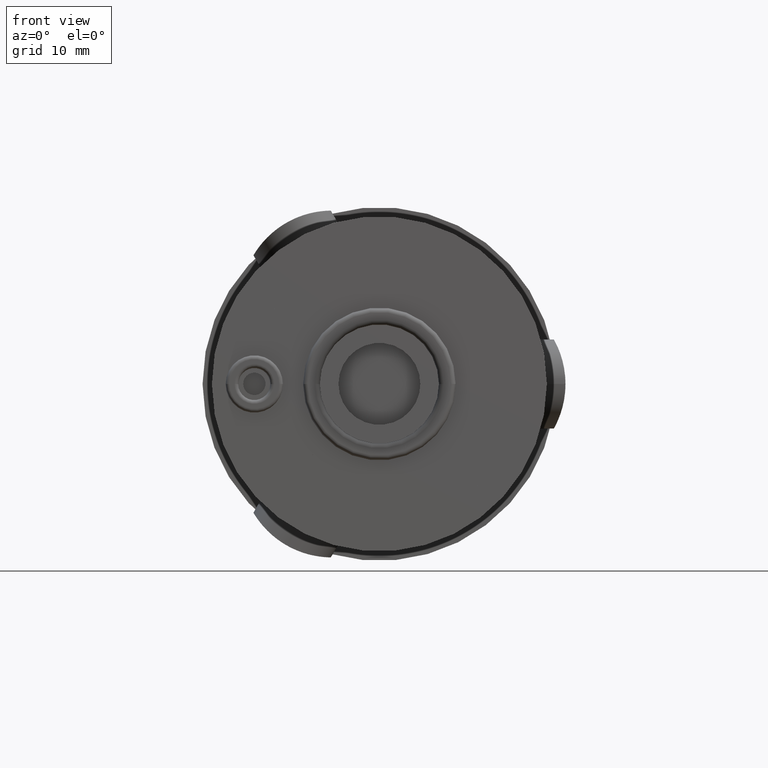
[diagram: clean part render]
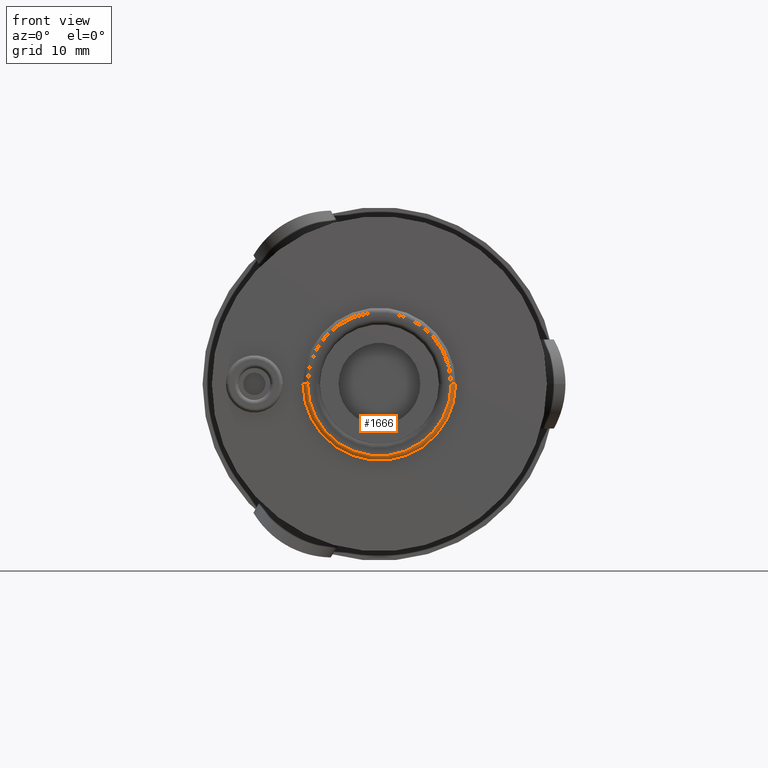
[diagram: same view with one face highlighted and labeled with its STEP entity id]
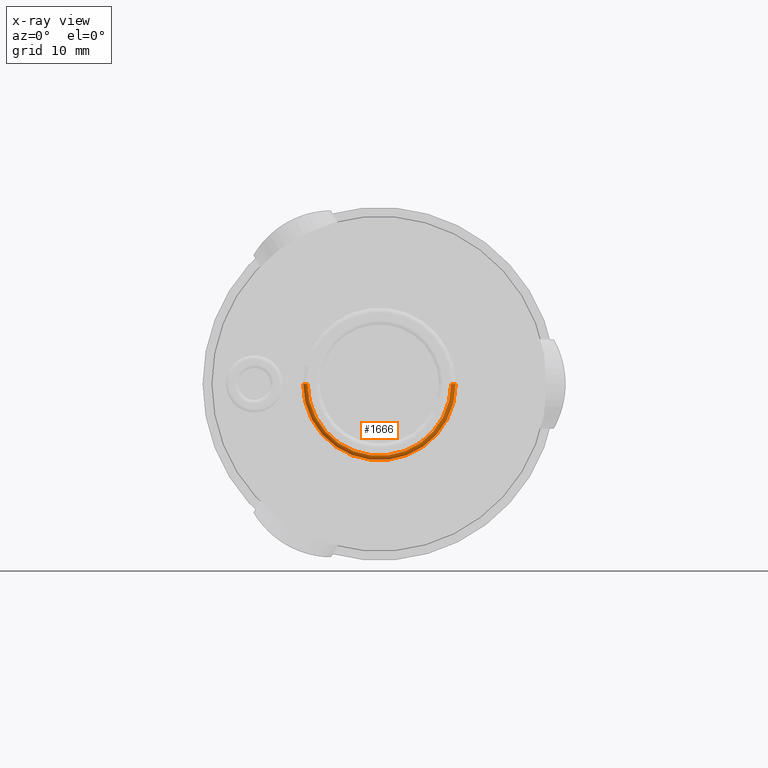
[diagram: x-ray of the same camera — body ghosted, the highlighted face saturated]
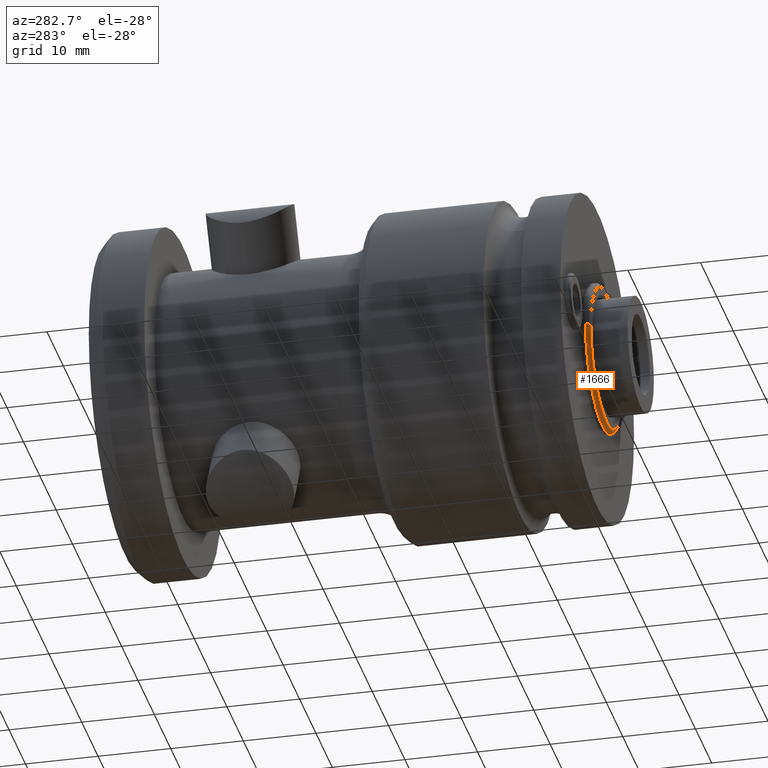
[diagram: same view with one face highlighted and labeled with its STEP entity id]
A machine part, front view. The second image highlights one B-rep face of the part: STEP entity #1666.
The next image is the same camera in x-ray: the body ghosted, the highlighted face saturated — about 0% of this face is hidden behind the body in this view.
A second angle (auxiliary view) of the same face is appended — the face is thin or edge-on in the first view.
In plain terms, the highlighted toroidal blend (fillet) surface has major radius 9.65 mm and minor (blend) radius 0.6 mm.
Its self-contained STEP definition (entity closure, byte-faithful):
#126=CARTESIAN_POINT('',(-9.65E0,-7.000000000001E-1,0.E0));
#127=DIRECTION('',(0.E0,0.E0,1.E0));
#128=DIRECTION('',(-1.E0,0.E0,0.E0));
#129=AXIS2_PLACEMENT_3D('',#126,#127,#128);
#134=CARTESIAN_POINT('',(9.65E0,-7.000000000001E-1,0.E0));
#135=DIRECTION('',(0.E0,0.E0,-1.E0));
#136=DIRECTION('',(1.E0,0.E0,0.E0));
#137=AXIS2_PLACEMENT_3D('',#134,#135,#136);
#142=CARTESIAN_POINT('',(0.E0,-7.000000000001E-1,0.E0));
#143=DIRECTION('',(0.E0,-1.E0,0.E0));
#144=DIRECTION('',(-1.E0,0.E0,0.E0));
#145=AXIS2_PLACEMENT_3D('',#142,#143,#144);
#150=CARTESIAN_POINT('',(0.E0,-1.3E0,0.E0));
#151=DIRECTION('',(0.E0,-1.E0,0.E0));
#152=DIRECTION('',(-1.E0,0.E0,0.E0));
#153=AXIS2_PLACEMENT_3D('',#150,#151,#152);
#1590=CARTESIAN_POINT('',(-1.025E1,-7.000000000001E-1,0.E0));
#1592=VERTEX_POINT('',#1590);
#1593=CARTESIAN_POINT('',(-9.65E0,-1.3E0,0.E0));
#1594=VERTEX_POINT('',#1593);
#1596=CARTESIAN_POINT('',(1.025E1,-7.000000000001E-1,0.E0));
#1598=VERTEX_POINT('',#1596);
#1599=CARTESIAN_POINT('',(9.65E0,-1.3E0,0.E0));
#1600=VERTEX_POINT('',#1599);
#1653=CARTESIAN_POINT('',(0.E0,-7.000000000001E-1,0.E0));
#1654=DIRECTION('',(0.E0,1.E0,0.E0));
#1655=DIRECTION('',(1.E0,0.E0,0.E0));
#1656=AXIS2_PLACEMENT_3D('',#1653,#1654,#1655);
#1657=TOROIDAL_SURFACE('',#1656,9.65E0,6.E-1);
#1658=ORIENTED_EDGE('',*,*,#1630,.T.);
#1660=ORIENTED_EDGE('',*,*,#1659,.T.);
#1661=ORIENTED_EDGE('',*,*,#1634,.F.);
#1663=ORIENTED_EDGE('',*,*,#1662,.F.);
#1664=EDGE_LOOP('',(#1658,#1660,#1661,#1663));
#1665=FACE_OUTER_BOUND('',#1664,.F.);
#130=CIRCLE('',#129,6.E-1);
#138=CIRCLE('',#137,6.E-1);
#146=CIRCLE('',#145,1.025E1);
#154=CIRCLE('',#153,9.65E0);
#1630=EDGE_CURVE('',#1592,#1594,#130,.T.);
#1634=EDGE_CURVE('',#1598,#1600,#138,.T.);
#1659=EDGE_CURVE('',#1594,#1600,#154,.T.);
#1662=EDGE_CURVE('',#1592,#1598,#146,.T.);
#1666=ADVANCED_FACE('',(#1665),#1657,.T.);